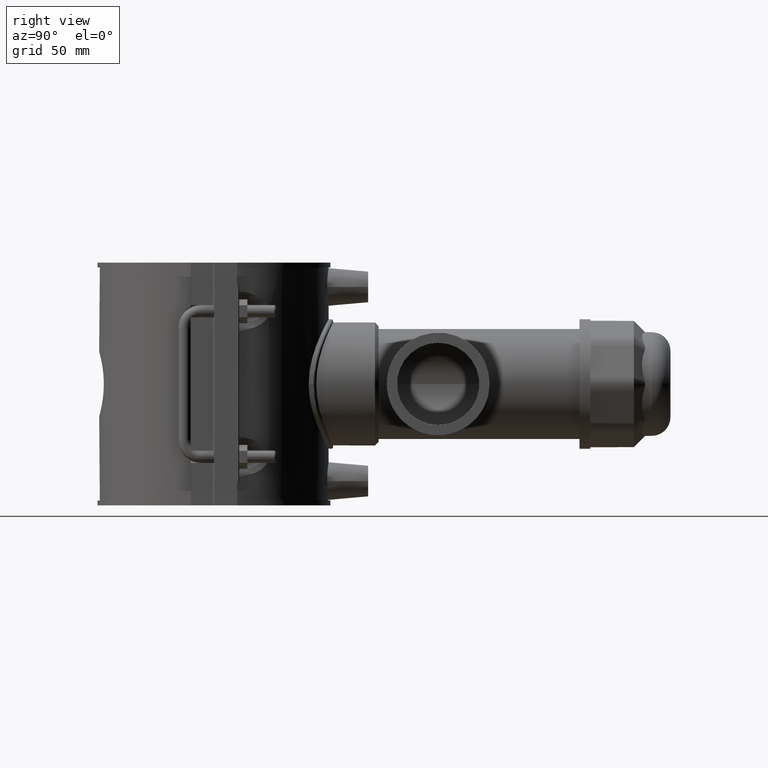
[diagram: clean part render]
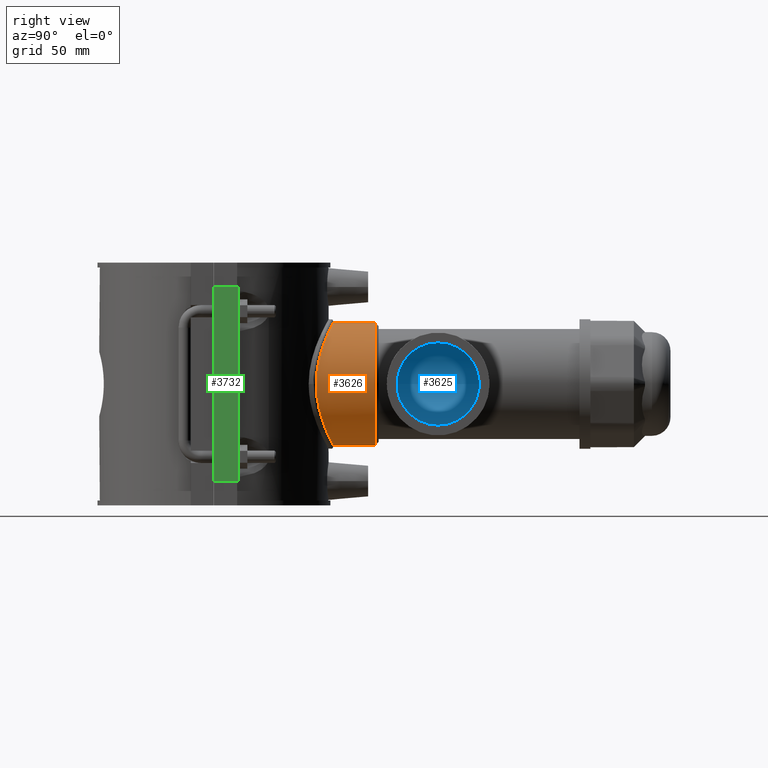
[diagram: same view with three faces highlighted in distinct colors, each labeled with its STEP entity id]
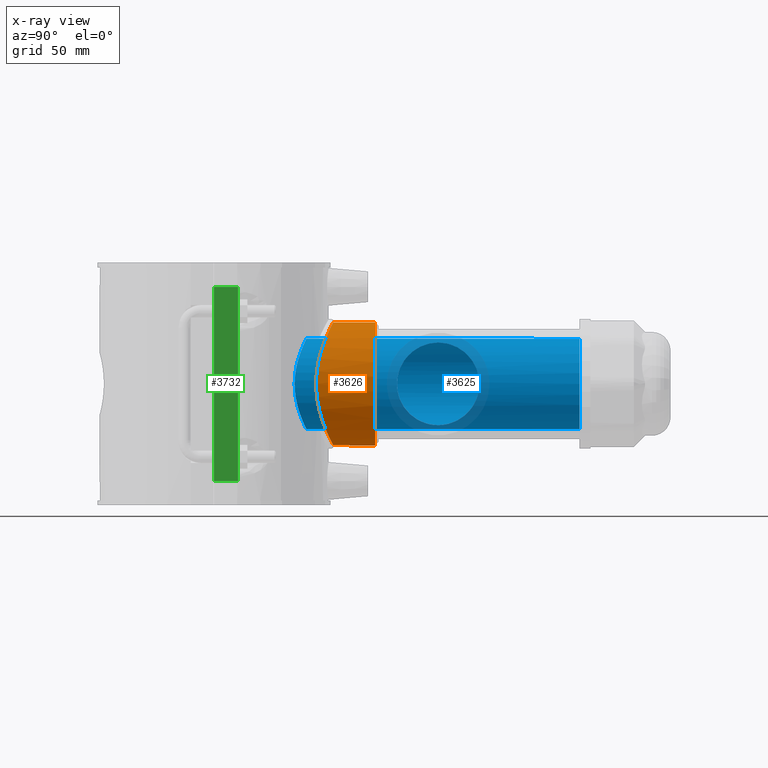
[diagram: x-ray of the same camera — body ghosted, the three highlighted faces saturated]
A machine part, right view with three faces highlighted in distinct colors.
The next image is the same camera in x-ray (body ghosted, the three faces saturated) — at least one of them is partly hidden behind the body in this view.
Their STEP definitions:

[orange] entity #3626 — the highlighted cylindrical surface (bore or boss wall) has radius 29.925 mm, axis along (0, 1, 0).
#668=FACE_BOUND('',#1113,.T.);
#726=B_SPLINE_CURVE_WITH_KNOTS('',3,(#5327,#5328,#5329,#5330,#5331,#5332,
#5333,#5334,#5335,#5336,#5337,#5338,#5339,#5340,#5341,#5342,#5343,#5344,
#5345,#5346,#5347,#5348,#5349,#5350,#5351,#5352,#5353,#5354,#5355,#5356,
#5357,#5358,#5359,#5360,#5361,#5362,#5363,#5364,#5365,#5366,#5367,#5368,
#5369,#5370,#5371,#5372,#5373,#5374,#5375,#5376,#5377,#5378,#5379,#5380,
#5381,#5382,#5383,#5384,#5385,#5386,#5387,#5388,#5389,#5390,#5391,#5392),
 .UNSPECIFIED.,.T.,.F.,(4,2,2,2,2,2,2,2,2,2,2,2,2,2,2,2,2,2,2,2,2,2,2,2,
2,2,2,2,2,2,2,2,4),(0.,0.576905172344591,1.15381034468918,1.73071551703377,
2.30762068937836,2.88271383502398,3.45780698066959,4.03290012631521,4.60799327196082,
5.18308641760643,5.75817956325205,6.33327270889766,6.90836585454327,7.48527102688787,
8.06217619923246,8.63908137157705,9.21598654392164,9.79289171626623,10.3697968886108,
10.9467020609554,11.5236072333,12.0987003789456,12.6737935245912,13.2488866702368,
13.8239798158825,14.3990729615281,14.9741661071737,15.5492592528193,16.1243523984649,
16.7012575708095,17.2781627431541,17.8550679154987,18.4319730878433),
 .UNSPECIFIED.);
#824=CYLINDRICAL_SURFACE('',#3857,29.925);
#882=FACE_OUTER_BOUND('',#1112,.T.);
#1112=EDGE_LOOP('',(#2414));
#1113=EDGE_LOOP('',(#2415));
#1395=CIRCLE('',#3858,29.925);
#1525=VERTEX_POINT('',#5324);
#1526=VERTEX_POINT('',#5326);
#1879=EDGE_CURVE('',#1525,#1525,#1395,.T.);
#1880=EDGE_CURVE('',#1526,#1526,#726,.T.);
#2414=ORIENTED_EDGE('',*,*,#1879,.F.);
#2415=ORIENTED_EDGE('',*,*,#1880,.F.);
#3626=ADVANCED_FACE('',(#882,#668),#824,.T.);
#3857=AXIS2_PLACEMENT_3D('',#5323,#4205,#4206);
#3858=AXIS2_PLACEMENT_3D('',#5325,#4207,#4208);
#4205=DIRECTION('center_axis',(0.,1.,3.06161699786838E-16));
#4206=DIRECTION('ref_axis',(0.,0.,1.));
#4207=DIRECTION('center_axis',(0.,1.,3.06161699786838E-16));
#4208=DIRECTION('ref_axis',(0.,0.,-1.));
#5323=CARTESIAN_POINT('Origin',(0.,40.025,-1.52315445643951E-15));
#5324=CARTESIAN_POINT('',(3.66475554644845E-15,78.3,29.925));
#5325=CARTESIAN_POINT('Origin',(0.,78.3,1.01951846029017E-14));
#5326=CARTESIAN_POINT('',(29.925,49.7212972377029,5.55111512312578E-16));
#5327=CARTESIAN_POINT('Ctrl Pts',(29.925,49.7212972377029,5.55111512312578E-16));
#5328=CARTESIAN_POINT('Ctrl Pts',(29.925,49.7212972377029,1.92301724114864));
#5329=CARTESIAN_POINT('Ctrl Pts',(29.7367407558585,49.8361479151313,3.89613121900332));
#5330=CARTESIAN_POINT('Ctrl Pts',(28.9605776035551,50.2911556209854,7.79349312969337));
#5331=CARTESIAN_POINT('Ctrl Pts',(28.3730054523869,50.630509224625,9.71790088005742));
#5332=CARTESIAN_POINT('Ctrl Pts',(26.8365205929235,51.4614117576992,13.3890403682948));
#5333=CARTESIAN_POINT('Ctrl Pts',(25.8863820633463,51.9525300963245,15.1393747806737));
#5334=CARTESIAN_POINT('Ctrl Pts',(23.7036052254229,52.9840472096831,18.3696637119437));
#5335=CARTESIAN_POINT('Ctrl Pts',(22.4706391586268,53.5234907943791,19.849701695388));
#5336=CARTESIAN_POINT('Ctrl Pts',(19.8538178039683,54.5482097491108,22.4665230500466));
#5337=CARTESIAN_POINT('Ctrl Pts',(18.3758318225415,55.0716744505244,23.6988887210368));
#5338=CARTESIAN_POINT('Ctrl Pts',(15.1447435872267,56.0463849286694,25.8833008655278));
#5339=CARTESIAN_POINT('Ctrl Pts',(13.3915352253266,56.4969004109307,26.8355161890546));
#5340=CARTESIAN_POINT('Ctrl Pts',(9.71433730830763,57.2439047139648,28.3744571351509));
#5341=CARTESIAN_POINT('Ctrl Pts',(7.78680701029366,57.5405713673263,28.9624140246824));
#5342=CARTESIAN_POINT('Ctrl Pts',(3.88816579201136,57.9347381410939,29.7378203024942));
#5343=CARTESIAN_POINT('Ctrl Pts',(1.91697715215205,58.032,29.925));
#5344=CARTESIAN_POINT('Ctrl Pts',(-1.91697715215205,58.032,29.925));
#5345=CARTESIAN_POINT('Ctrl Pts',(-3.88816579201136,57.9347381410939,29.7378203024942));
#5346=CARTESIAN_POINT('Ctrl Pts',(-7.78680701029366,57.5405713673263,28.9624140246824));
#5347=CARTESIAN_POINT('Ctrl Pts',(-9.71433730830763,57.2439047139648,28.3744571351509));
#5348=CARTESIAN_POINT('Ctrl Pts',(-13.3915352253266,56.4969004109307,26.8355161890546));
#5349=CARTESIAN_POINT('Ctrl Pts',(-15.1447435872267,56.0463849286694,25.8833008655278));
#5350=CARTESIAN_POINT('Ctrl Pts',(-18.3758318225415,55.0716744505244,23.6988887210368));
#5351=CARTESIAN_POINT('Ctrl Pts',(-19.8538178039683,54.5482097491108,22.4665230500466));
#5352=CARTESIAN_POINT('Ctrl Pts',(-22.4706391586268,53.5234907943791,19.849701695388));
#5353=CARTESIAN_POINT('Ctrl Pts',(-23.7036052254229,52.9840472096831,18.3696637119437));
#5354=CARTESIAN_POINT('Ctrl Pts',(-25.8863820633463,51.9525300963245,15.1393747806736));
#5355=CARTESIAN_POINT('Ctrl Pts',(-26.8365205929235,51.4614117576992,13.3890403682948));
#5356=CARTESIAN_POINT('Ctrl Pts',(-28.3730054523869,50.630509224625,9.71790088005742));
#5357=CARTESIAN_POINT('Ctrl Pts',(-28.9605776035551,50.2911556209854,7.79349312969337));
#5358=CARTESIAN_POINT('Ctrl Pts',(-29.7367407558585,49.8361479151313,3.89613121900333));
#5359=CARTESIAN_POINT('Ctrl Pts',(-29.925,49.7212972377029,1.92301724114864));
#5360=CARTESIAN_POINT('Ctrl Pts',(-29.925,49.7212972377029,-1.92301724114863));
#5361=CARTESIAN_POINT('Ctrl Pts',(-29.7367407558585,49.8361479151313,-3.89613121900332));
#5362=CARTESIAN_POINT('Ctrl Pts',(-28.9605776035551,50.2911556209854,-7.79349312969336));
#5363=CARTESIAN_POINT('Ctrl Pts',(-28.3730054523869,50.630509224625,-9.71790088005741));
#5364=CARTESIAN_POINT('Ctrl Pts',(-26.8365205929235,51.4614117576992,-13.3890403682948));
#5365=CARTESIAN_POINT('Ctrl Pts',(-25.8863820633463,51.9525300963245,-15.1393747806736));
#5366=CARTESIAN_POINT('Ctrl Pts',(-23.7036052254229,52.9840472096831,-18.3696637119437));
#5367=CARTESIAN_POINT('Ctrl Pts',(-22.4706391586268,53.5234907943791,-19.849701695388));
#5368=CARTESIAN_POINT('Ctrl Pts',(-19.8538178039683,54.5482097491108,-22.4665230500466));
#5369=CARTESIAN_POINT('Ctrl Pts',(-18.3758318225415,55.0716744505244,-23.6988887210368));
#5370=CARTESIAN_POINT('Ctrl Pts',(-15.1447435872268,56.0463849286693,-25.8833008655278));
#5371=CARTESIAN_POINT('Ctrl Pts',(-13.3915352253266,56.4969004109307,-26.8355161890546));
#5372=CARTESIAN_POINT('Ctrl Pts',(-9.71433730830763,57.2439047139648,-28.3744571351509));
#5373=CARTESIAN_POINT('Ctrl Pts',(-7.78680701029367,57.5405713673263,-28.9624140246824));
#5374=CARTESIAN_POINT('Ctrl Pts',(-3.88816579201136,57.9347381410939,-29.7378203024942));
#5375=CARTESIAN_POINT('Ctrl Pts',(-1.91697715215205,58.032,-29.925));
#5376=CARTESIAN_POINT('Ctrl Pts',(1.91697715215204,58.032,-29.925));
#5377=CARTESIAN_POINT('Ctrl Pts',(3.88816579201136,57.9347381410939,-29.7378203024942));
#5378=CARTESIAN_POINT('Ctrl Pts',(7.78680701029366,57.5405713673263,-28.9624140246824));
#5379=CARTESIAN_POINT('Ctrl Pts',(9.71433730830763,57.2439047139648,-28.3744571351509));
#5380=CARTESIAN_POINT('Ctrl Pts',(13.3915352253266,56.4969004109307,-26.8355161890546));
#5381=CARTESIAN_POINT('Ctrl Pts',(15.1447435872268,56.0463849286694,-25.8833008655278));
#5382=CARTESIAN_POINT('Ctrl Pts',(18.3758318225415,55.0716744505244,-23.6988887210368));
#5383=CARTESIAN_POINT('Ctrl Pts',(19.8538178039683,54.5482097491108,-22.4665230500466));
#5384=CARTESIAN_POINT('Ctrl Pts',(22.4706391586268,53.5234907943791,-19.849701695388));
#5385=CARTESIAN_POINT('Ctrl Pts',(23.7036052254229,52.9840472096831,-18.3696637119437));
#5386=CARTESIAN_POINT('Ctrl Pts',(25.8863820633463,51.9525300963245,-15.1393747806736));
#5387=CARTESIAN_POINT('Ctrl Pts',(26.8365205929235,51.4614117576992,-13.3890403682947));
#5388=CARTESIAN_POINT('Ctrl Pts',(28.3730054523869,50.630509224625,-9.71790088005741));
#5389=CARTESIAN_POINT('Ctrl Pts',(28.9605776035551,50.2911556209854,-7.79349312969337));
#5390=CARTESIAN_POINT('Ctrl Pts',(29.7367407558585,49.8361479151313,-3.89613121900333));
#5391=CARTESIAN_POINT('Ctrl Pts',(29.925,49.7212972377029,-1.92301724114864));
#5392=CARTESIAN_POINT('Ctrl Pts',(29.925,49.7212972377029,0.));

[blue] entity #3625 — the highlighted cylindrical surface (bore or boss wall) has radius 22.05 mm, axis along (0, 1, 0).
#666=FACE_BOUND('',#1110,.T.);
#667=FACE_BOUND('',#1111,.T.);
#724=B_SPLINE_CURVE_WITH_KNOTS('',3,(#5190,#5191,#5192,#5193,#5194,#5195,
#5196,#5197,#5198,#5199,#5200,#5201,#5202,#5203,#5204,#5205,#5206,#5207,
#5208,#5209,#5210,#5211,#5212,#5213,#5214,#5215,#5216,#5217,#5218,#5219,
#5220,#5221,#5222,#5223,#5224,#5225,#5226,#5227,#5228,#5229,#5230,#5231,
#5232,#5233,#5234,#5235,#5236,#5237,#5238,#5239,#5240,#5241,#5242,#5243,
#5244,#5245,#5246,#5247,#5248,#5249,#5250,#5251,#5252,#5253,#5254,#5255),
 .UNSPECIFIED.,.T.,.F.,(4,2,2,2,2,2,2,2,2,2,2,2,2,2,2,2,2,2,2,2,2,2,2,2,
2,2,2,2,2,2,2,2,4),(0.,0.423932164903688,0.847864329807375,1.27179649471106,
1.69572865961475,2.11860679932377,2.54148493903279,2.96436307874181,3.38724121845083,
3.81011935815985,4.23299749786887,4.65587563757789,5.07875377728691,5.5026859421906,
5.92661810709429,6.35055027199797,6.77448243690166,7.19841460180535,7.62234676670904,
8.04627893161272,8.47021109651641,8.89308923622543,9.31596737593445,9.73884551564347,
10.1617236553525,10.5846017950615,11.0074799347705,11.4303580744796,11.8532362141886,
12.2771683790923,12.7011005439959,13.1250327088996,13.5489648738033),
 .UNSPECIFIED.);
#725=B_SPLINE_CURVE_WITH_KNOTS('',3,(#5257,#5258,#5259,#5260,#5261,#5262,
#5263,#5264,#5265,#5266,#5267,#5268,#5269,#5270,#5271,#5272,#5273,#5274,
#5275,#5276,#5277,#5278,#5279,#5280,#5281,#5282,#5283,#5284,#5285,#5286,
#5287,#5288,#5289,#5290,#5291,#5292,#5293,#5294,#5295,#5296,#5297,#5298,
#5299,#5300,#5301,#5302,#5303,#5304,#5305,#5306,#5307,#5308,#5309,#5310,
#5311,#5312,#5313,#5314,#5315,#5316,#5317,#5318,#5319,#5320,#5321,#5322),
 .UNSPECIFIED.,.T.,.F.,(4,2,2,2,2,2,2,2,2,2,2,2,2,2,2,2,2,2,2,2,2,2,2,2,
2,2,2,2,2,2,2,2,4),(0.,0.438862203022759,0.877724406045519,1.31658660906828,
1.75544881209104,2.16057125727716,2.56569370246328,2.9708161476494,3.37593859283552,
3.78106103802164,4.18618348320775,4.59130592839387,4.99642837357999,5.43529057660275,
5.87415277962551,6.31301498264827,6.75187718567102,7.19073938869378,7.62960159171654,
8.0684637947393,8.50732599776206,8.91244844294818,9.31757088813429,9.72269333332041,
10.1278157785065,10.5329382236927,10.9380606688788,11.3431831140649,11.748305559251,
12.1871677622738,12.6260299652965,13.0648921683193,13.503754371342),
 .UNSPECIFIED.);
#823=CYLINDRICAL_SURFACE('',#3856,22.05);
#881=FACE_OUTER_BOUND('',#1109,.T.);
#1109=EDGE_LOOP('',(#2411));
#1110=EDGE_LOOP('',(#2412));
#1111=EDGE_LOOP('',(#2413));
#1394=CIRCLE('',#3855,22.05);
#1522=VERTEX_POINT('',#5186);
#1523=VERTEX_POINT('',#5189);
#1524=VERTEX_POINT('',#5256);
#1876=EDGE_CURVE('',#1522,#1522,#1394,.T.);
#1877=EDGE_CURVE('',#1523,#1523,#724,.T.);
#1878=EDGE_CURVE('',#1524,#1524,#725,.T.);
#2411=ORIENTED_EDGE('',*,*,#1877,.F.);
#2412=ORIENTED_EDGE('',*,*,#1878,.F.);
#2413=ORIENTED_EDGE('',*,*,#1876,.T.);
#3625=ADVANCED_FACE('',(#881,#666,#667),#823,.F.);
#3855=AXIS2_PLACEMENT_3D('',#5187,#4201,#4202);
#3856=AXIS2_PLACEMENT_3D('',#5188,#4203,#4204);
#4201=DIRECTION('center_axis',(0.,1.,3.06161699786838E-16));
#4202=DIRECTION('ref_axis',(1.,0.,0.));
#4203=DIRECTION('center_axis',(0.,1.,3.06161699786838E-16));
#4204=DIRECTION('ref_axis',(0.,0.,1.));
#5186=CARTESIAN_POINT('',(-22.05,177.75,4.33433118388227E-14));
#5187=CARTESIAN_POINT('Origin',(0.,177.75,4.06429656467028E-14));
#5188=CARTESIAN_POINT('Origin',(0.,88.85,1.34251905356529E-14));
#5189=CARTESIAN_POINT('',(-22.05,39.2275094799555,4.08006961549745E-14));
#5190=CARTESIAN_POINT('Ctrl Pts',(-22.05,39.2275094799555,4.08006961549745E-14));
#5191=CARTESIAN_POINT('Ctrl Pts',(-22.05,39.2275094799555,1.41310721634567));
#5192=CARTESIAN_POINT('Ctrl Pts',(-21.9120181855712,39.3060965900201,2.86454234681076));
#5193=CARTESIAN_POINT('Ctrl Pts',(-21.3416149579853,39.6186981191372,5.73390052865368));
#5194=CARTESIAN_POINT('Ctrl Pts',(-20.9094226693552,39.8522072445092,7.15192414937324));
#5195=CARTESIAN_POINT('Ctrl Pts',(-19.777857798149,40.4257175428363,9.85851994123725));
#5196=CARTESIAN_POINT('Ctrl Pts',(-19.0775850827221,40.7654425705516,11.1496997556922));
#5197=CARTESIAN_POINT('Ctrl Pts',(-17.4680124480029,41.4806473129333,13.532871040768));
#5198=CARTESIAN_POINT('Ctrl Pts',(-16.5584918828565,41.8554481612044,14.6249171674703));
#5199=CARTESIAN_POINT('Ctrl Pts',(-14.6273208969281,42.5687491274309,16.5560881533987));
#5200=CARTESIAN_POINT('Ctrl Pts',(-13.5364618319019,42.9336729032683,17.4652694562005));
#5201=CARTESIAN_POINT('Ctrl Pts',(-11.1527904733297,43.6136599303241,19.0758145535634));
#5202=CARTESIAN_POINT('Ctrl Pts',(-9.85991246843813,43.928195445407,19.7773038614239));
#5203=CARTESIAN_POINT('Ctrl Pts',(-7.14977491560131,44.4498025806699,20.9102929599327));
#5204=CARTESIAN_POINT('Ctrl Pts',(-5.72994771902175,44.6569809386597,21.3426972480197));
#5205=CARTESIAN_POINT('Ctrl Pts',(-2.85988425539408,44.9321634185185,21.9126467761735));
#5206=CARTESIAN_POINT('Ctrl Pts',(-1.40959379903007,45.,22.05));
#5207=CARTESIAN_POINT('Ctrl Pts',(1.40959379903006,45.,22.05));
#5208=CARTESIAN_POINT('Ctrl Pts',(2.85988425539407,44.9321634185185,21.9126467761735));
#5209=CARTESIAN_POINT('Ctrl Pts',(5.72994771902173,44.6569809386597,21.3426972480197));
#5210=CARTESIAN_POINT('Ctrl Pts',(7.1497749156013,44.4498025806699,20.9102929599327));
#5211=CARTESIAN_POINT('Ctrl Pts',(9.85991246843811,43.928195445407,19.7773038614239));
#5212=CARTESIAN_POINT('Ctrl Pts',(11.1527904733297,43.6136599303241,19.0758145535634));
#5213=CARTESIAN_POINT('Ctrl Pts',(13.5364618319019,42.9336729032683,17.4652694562005));
#5214=CARTESIAN_POINT('Ctrl Pts',(14.6273208969281,42.5687491274309,16.5560881533987));
#5215=CARTESIAN_POINT('Ctrl Pts',(16.5584918828565,41.8554481612044,14.6249171674703));
#5216=CARTESIAN_POINT('Ctrl Pts',(17.4680124480029,41.4806473129333,13.532871040768));
#5217=CARTESIAN_POINT('Ctrl Pts',(19.0775850827221,40.7654425705516,11.1496997556922));
#5218=CARTESIAN_POINT('Ctrl Pts',(19.777857798149,40.4257175428363,9.85851994123725));
#5219=CARTESIAN_POINT('Ctrl Pts',(20.9094226693552,39.8522072445092,7.15192414937325));
#5220=CARTESIAN_POINT('Ctrl Pts',(21.3416149579853,39.6186981191372,5.73390052865368));
#5221=CARTESIAN_POINT('Ctrl Pts',(21.9120181855712,39.3060965900201,2.86454234681077));
#5222=CARTESIAN_POINT('Ctrl Pts',(22.05,39.2275094799555,1.41310721634567));
#5223=CARTESIAN_POINT('Ctrl Pts',(22.05,39.2275094799555,-1.41310721634559));
#5224=CARTESIAN_POINT('Ctrl Pts',(21.9120181855712,39.3060965900201,-2.86454234681068));
#5225=CARTESIAN_POINT('Ctrl Pts',(21.3416149579853,39.6186981191372,-5.7339005286536));
#5226=CARTESIAN_POINT('Ctrl Pts',(20.9094226693552,39.8522072445092,-7.15192414937316));
#5227=CARTESIAN_POINT('Ctrl Pts',(19.777857798149,40.4257175428363,-9.85851994123716));
#5228=CARTESIAN_POINT('Ctrl Pts',(19.0775850827221,40.7654425705516,-11.1496997556921));
#5229=CARTESIAN_POINT('Ctrl Pts',(17.4680124480029,41.4806473129333,-13.5328710407679));
#5230=CARTESIAN_POINT('Ctrl Pts',(16.5584918828565,41.8554481612044,-14.6249171674702));
#5231=CARTESIAN_POINT('Ctrl Pts',(14.6273208969281,42.5687491274309,-16.5560881533986));
#5232=CARTESIAN_POINT('Ctrl Pts',(13.5364618319019,42.9336729032683,-17.4652694562004));
#5233=CARTESIAN_POINT('Ctrl Pts',(11.1527904733297,43.6136599303241,-19.0758145535633));
#5234=CARTESIAN_POINT('Ctrl Pts',(9.85991246843813,43.928195445407,-19.7773038614238));
#5235=CARTESIAN_POINT('Ctrl Pts',(7.14977491560131,44.4498025806699,-20.9102929599326));
#5236=CARTESIAN_POINT('Ctrl Pts',(5.72994771902175,44.6569809386597,-21.3426972480196));
#5237=CARTESIAN_POINT('Ctrl Pts',(2.85988425539408,44.9321634185185,-21.9126467761734));
#5238=CARTESIAN_POINT('Ctrl Pts',(1.40959379903007,45.,-22.0499999999999));
#5239=CARTESIAN_POINT('Ctrl Pts',(-1.40959379903005,45.,-22.0499999999999));
#5240=CARTESIAN_POINT('Ctrl Pts',(-2.85988425539405,44.9321634185185,-21.9126467761734));
#5241=CARTESIAN_POINT('Ctrl Pts',(-5.72994771902172,44.6569809386597,-21.3426972480196));
#5242=CARTESIAN_POINT('Ctrl Pts',(-7.14977491560129,44.4498025806699,-20.9102929599326));
#5243=CARTESIAN_POINT('Ctrl Pts',(-9.85991246843811,43.928195445407,-19.7773038614238));
#5244=CARTESIAN_POINT('Ctrl Pts',(-11.1527904733297,43.6136599303241,-19.0758145535633));
#5245=CARTESIAN_POINT('Ctrl Pts',(-13.5364618319018,42.9336729032683,-17.4652694562004));
#5246=CARTESIAN_POINT('Ctrl Pts',(-14.627320896928,42.5687491274309,-16.5560881533986));
#5247=CARTESIAN_POINT('Ctrl Pts',(-16.5584918828564,41.8554481612044,-14.6249171674702));
#5248=CARTESIAN_POINT('Ctrl Pts',(-17.4680124480029,41.4806473129333,-13.5328710407679));
#5249=CARTESIAN_POINT('Ctrl Pts',(-19.0775850827221,40.7654425705516,-11.1496997556921));
#5250=CARTESIAN_POINT('Ctrl Pts',(-19.777857798149,40.4257175428363,-9.85851994123718));
#5251=CARTESIAN_POINT('Ctrl Pts',(-20.9094226693552,39.8522072445092,-7.15192414937317));
#5252=CARTESIAN_POINT('Ctrl Pts',(-21.3416149579853,39.6186981191372,-5.7339005286536));
#5253=CARTESIAN_POINT('Ctrl Pts',(-21.9120181855712,39.3060965900201,-2.86454234681068));
#5254=CARTESIAN_POINT('Ctrl Pts',(-22.05,39.2275094799555,-1.41310721634558));
#5255=CARTESIAN_POINT('Ctrl Pts',(-22.05,39.2275094799555,4.08006961549745E-14));
#5256=CARTESIAN_POINT('',(9.28453014427744,109.,-20.));
#5257=CARTESIAN_POINT('Ctrl Pts',(9.28453014427744,109.,-20.));
#5258=CARTESIAN_POINT('Ctrl Pts',(9.28453014427744,107.537125989924,-20.));
#5259=CARTESIAN_POINT('Ctrl Pts',(9.63072423216497,106.180721191223,-19.8444055786644));
#5260=CARTESIAN_POINT('Ctrl Pts',(10.6791479648566,103.592438062831,-19.3004419921324));
#5261=CARTESIAN_POINT('Ctrl Pts',(11.3785811025972,102.359979662679,-18.9094498965709));
#5262=CARTESIAN_POINT('Ctrl Pts',(12.9056757778336,99.9902557280728,-17.9020274956954));
#5263=CARTESIAN_POINT('Ctrl Pts',(13.7332657916878,98.8580956091539,-17.2852907864314));
#5264=CARTESIAN_POINT('Ctrl Pts',(15.3666417065721,96.7366680295109,-15.8508734996278));
#5265=CARTESIAN_POINT('Ctrl Pts',(16.1731324690166,95.7483380768556,-15.0326093243175));
#5266=CARTESIAN_POINT('Ctrl Pts',(17.6046799329534,94.0358503580401,-13.320121605502));
#5267=CARTESIAN_POINT('Ctrl Pts',(18.2877431879889,93.240445636442,-12.3792269304026));
#5268=CARTESIAN_POINT('Ctrl Pts',(19.5402317435905,91.8028298991302,-10.2891279409988));
#5269=CARTESIAN_POINT('Ctrl Pts',(20.109389274455,91.1606707060766,-9.13972753485798));
#5270=CARTESIAN_POINT('Ctrl Pts',(21.0509268650762,90.1056713668103,-6.6918350947094));
#5271=CARTESIAN_POINT('Ctrl Pts',(21.4241131486436,89.6918630793062,-5.39030645122914));
#5272=CARTESIAN_POINT('Ctrl Pts',(21.9237675529824,89.1389045906824,-2.71964044610582));
#5273=CARTESIAN_POINT('Ctrl Pts',(22.05,89.,-1.3504081506204));
#5274=CARTESIAN_POINT('Ctrl Pts',(22.05,89.,1.35040815062039));
#5275=CARTESIAN_POINT('Ctrl Pts',(21.9237675529824,89.1389045906824,2.71964044610581));
#5276=CARTESIAN_POINT('Ctrl Pts',(21.4241131486436,89.6918630793062,5.39030645122913));
#5277=CARTESIAN_POINT('Ctrl Pts',(21.0509268650762,90.1056713668103,6.69183509470938));
#5278=CARTESIAN_POINT('Ctrl Pts',(20.1093892744551,91.1606707060766,9.13972753485796));
#5279=CARTESIAN_POINT('Ctrl Pts',(19.5402317435906,91.8028298991302,10.2891279409988));
#5280=CARTESIAN_POINT('Ctrl Pts',(18.2877431879889,93.240445636442,12.3792269304026));
#5281=CARTESIAN_POINT('Ctrl Pts',(17.6046799329535,94.0358503580401,13.320121605502));
#5282=CARTESIAN_POINT('Ctrl Pts',(16.1731324690167,95.7483380768556,15.0326093243175));
#5283=CARTESIAN_POINT('Ctrl Pts',(15.3666417065722,96.7366680295109,15.8508734996278));
#5284=CARTESIAN_POINT('Ctrl Pts',(13.7332657916879,98.8580956091539,17.2852907864314));
#5285=CARTESIAN_POINT('Ctrl Pts',(12.9056757778337,99.9902557280728,17.9020274956954));
#5286=CARTESIAN_POINT('Ctrl Pts',(11.3785811025973,102.359979662679,18.9094498965709));
#5287=CARTESIAN_POINT('Ctrl Pts',(10.6791479648567,103.592438062831,19.3004419921324));
#5288=CARTESIAN_POINT('Ctrl Pts',(9.63072423216513,106.180721191223,19.8444055786644));
#5289=CARTESIAN_POINT('Ctrl Pts',(9.28453014427762,107.537125989924,20.));
#5290=CARTESIAN_POINT('Ctrl Pts',(9.28453014427762,110.462874010076,20.));
#5291=CARTESIAN_POINT('Ctrl Pts',(9.63072423216514,111.819278808777,19.8444055786644));
#5292=CARTESIAN_POINT('Ctrl Pts',(10.6791479648567,114.407561937169,19.3004419921324));
#5293=CARTESIAN_POINT('Ctrl Pts',(11.3785811025973,115.640020337321,18.9094498965709));
#5294=CARTESIAN_POINT('Ctrl Pts',(12.9056757778337,118.009744271927,17.9020274956954));
#5295=CARTESIAN_POINT('Ctrl Pts',(13.7332657916879,119.141904390846,17.2852907864314));
#5296=CARTESIAN_POINT('Ctrl Pts',(15.3666417065722,121.263331970489,15.8508734996278));
#5297=CARTESIAN_POINT('Ctrl Pts',(16.1731324690167,122.251661923144,15.0326093243175));
#5298=CARTESIAN_POINT('Ctrl Pts',(17.6046799329535,123.96414964196,13.320121605502));
#5299=CARTESIAN_POINT('Ctrl Pts',(18.2877431879889,124.759554363558,12.3792269304026));
#5300=CARTESIAN_POINT('Ctrl Pts',(19.5402317435906,126.19717010087,10.2891279409988));
#5301=CARTESIAN_POINT('Ctrl Pts',(20.1093892744551,126.839329293923,9.13972753485796));
#5302=CARTESIAN_POINT('Ctrl Pts',(21.0509268650762,127.89432863319,6.69183509470938));
#5303=CARTESIAN_POINT('Ctrl Pts',(21.4241131486436,128.308136920694,5.39030645122912));
#5304=CARTESIAN_POINT('Ctrl Pts',(21.9237675529824,128.861095409318,2.71964044610581));
#5305=CARTESIAN_POINT('Ctrl Pts',(22.05,129.,1.3504081506204));
#5306=CARTESIAN_POINT('Ctrl Pts',(22.05,129.,-1.35040815062039));
#5307=CARTESIAN_POINT('Ctrl Pts',(21.9237675529824,128.861095409318,-2.71964044610581));
#5308=CARTESIAN_POINT('Ctrl Pts',(21.4241131486436,128.308136920694,-5.39030645122913));
#5309=CARTESIAN_POINT('Ctrl Pts',(21.0509268650762,127.89432863319,-6.69183509470938));
#5310=CARTESIAN_POINT('Ctrl Pts',(20.109389274455,126.839329293923,-9.13972753485796));
#5311=CARTESIAN_POINT('Ctrl Pts',(19.5402317435905,126.19717010087,-10.2891279409988));
#5312=CARTESIAN_POINT('Ctrl Pts',(18.2877431879889,124.759554363558,-12.3792269304026));
#5313=CARTESIAN_POINT('Ctrl Pts',(17.6046799329534,123.96414964196,-13.320121605502));
#5314=CARTESIAN_POINT('Ctrl Pts',(16.1731324690166,122.251661923144,-15.0326093243175));
#5315=CARTESIAN_POINT('Ctrl Pts',(15.3666417065721,121.263331970489,-15.8508734996278));
#5316=CARTESIAN_POINT('Ctrl Pts',(13.7332657916878,119.141904390846,-17.2852907864314));
#5317=CARTESIAN_POINT('Ctrl Pts',(12.9056757778336,118.009744271927,-17.9020274956954));
#5318=CARTESIAN_POINT('Ctrl Pts',(11.3785811025972,115.640020337321,-18.9094498965709));
#5319=CARTESIAN_POINT('Ctrl Pts',(10.6791479648566,114.407561937169,-19.3004419921324));
#5320=CARTESIAN_POINT('Ctrl Pts',(9.63072423216497,111.819278808777,-19.8444055786644));
#5321=CARTESIAN_POINT('Ctrl Pts',(9.28453014427744,110.462874010076,-20.));
#5322=CARTESIAN_POINT('Ctrl Pts',(9.28453014427744,109.,-20.));

[green] entity #3732 — the highlighted planar face has unit normal (1, 0, 0).
#207=LINE('',#7143,#506);
#223=LINE('',#7214,#522);
#226=LINE('',#7220,#525);
#227=LINE('',#7221,#526);
#506=VECTOR('',#4673,94.4);
#522=VECTOR('',#4699,11.7000000000001);
#525=VECTOR('',#4704,11.7000000000001);
#526=VECTOR('',#4705,94.4);
#988=FACE_OUTER_BOUND('',#1242,.T.);
#1242=EDGE_LOOP('',(#2941,#2942,#2943,#2944));
#1725=VERTEX_POINT('',#7140);
#1726=VERTEX_POINT('',#7142);
#1744=VERTEX_POINT('',#7213);
#1746=VERTEX_POINT('',#7219);
#2164=EDGE_CURVE('',#1725,#1726,#207,.T.);
#2187=EDGE_CURVE('',#1726,#1744,#223,.T.);
#2190=EDGE_CURVE('',#1746,#1725,#226,.T.);
#2191=EDGE_CURVE('',#1744,#1746,#227,.T.);
#2941=ORIENTED_EDGE('',*,*,#2164,.F.);
#2942=ORIENTED_EDGE('',*,*,#2190,.F.);
#2943=ORIENTED_EDGE('',*,*,#2191,.F.);
#2944=ORIENTED_EDGE('',*,*,#2187,.F.);
#3550=PLANE('',#4019);
#3732=ADVANCED_FACE('',(#988),#3550,.T.);
#4019=AXIS2_PLACEMENT_3D('',#7218,#4702,#4703);
#4673=DIRECTION('',(0.,0.,-1.));
#4699=DIRECTION('',(0.,-1.,0.));
#4702=DIRECTION('center_axis',(1.,0.,0.));
#4703=DIRECTION('ref_axis',(0.,1.,0.));
#4704=DIRECTION('',(0.,1.,0.));
#4705=DIRECTION('',(0.,0.,1.));
#7140=CARTESIAN_POINT('',(64.,11.7500000000001,47.2));
#7142=CARTESIAN_POINT('',(64.,11.7500000000001,-47.2));
#7143=CARTESIAN_POINT('',(64.,11.7500000000001,0.));
#7213=CARTESIAN_POINT('',(64.,0.0500000000000078,-47.2));
#7214=CARTESIAN_POINT('',(64.,0.0500000000000078,-47.2));
#7218=CARTESIAN_POINT('Origin',(64.,0.0500000000000081,0.));
#7219=CARTESIAN_POINT('',(64.,0.0500000000000078,47.2));
#7220=CARTESIAN_POINT('',(64.,0.0500000000000078,47.2));
#7221=CARTESIAN_POINT('',(64.,0.0500000000000081,0.));